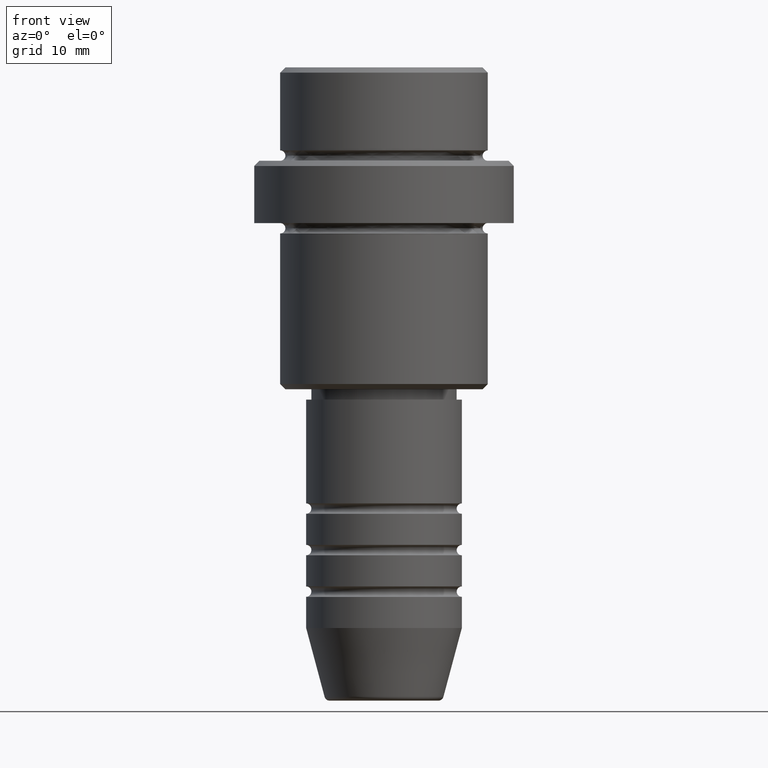
[diagram: clean part render]
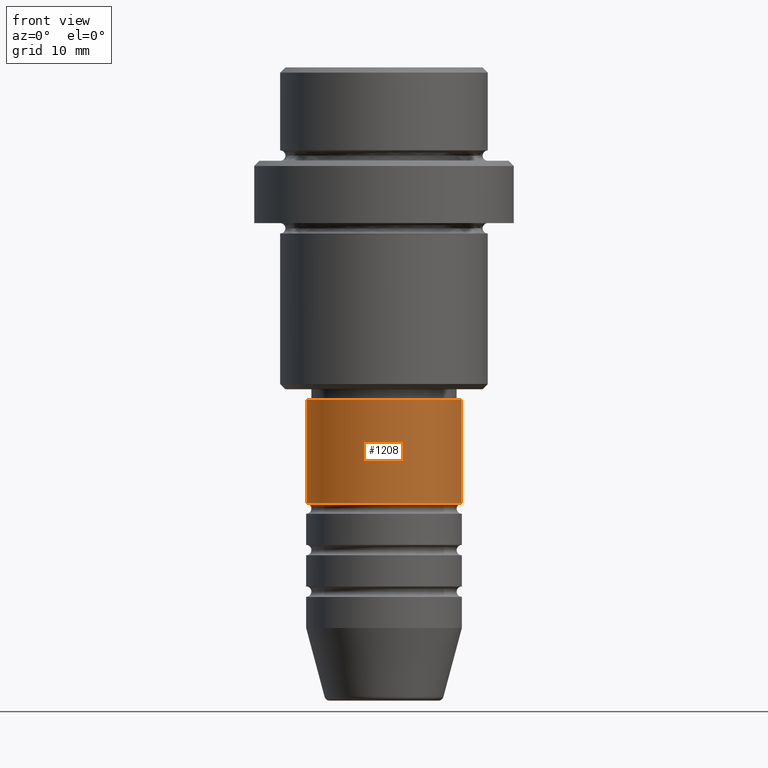
[diagram: same view with one face highlighted and labeled with its STEP entity id]
A machine part, front view. The second image highlights one B-rep face of the part: STEP entity #1208.
In plain terms, the highlighted cylindrical surface (partial cylindrical patch) has radius 7.5 mm, axis along (-0, -0, 1).
Its self-contained STEP definition (entity closure, byte-faithful):
#7 = CARTESIAN_POINT ( 'NONE',  ( 0.000000000000000000, 0.000000000000000000, 0.000000000000000000 ) ) ;
#25 = ORIENTED_EDGE ( 'NONE', *, *, #1352, .T. ) ;
#76 = EDGE_CURVE ( 'NONE', #1186, #1345, #517, .T. ) ;
#116 = AXIS2_PLACEMENT_3D ( 'NONE', #1355, #715, #825 ) ;
#216 = FACE_OUTER_BOUND ( 'NONE', #770, .T. ) ;
#248 = CARTESIAN_POINT ( 'NONE',  ( 7.500000000000000000, 0.000000000000000000, 0.000000000000000000 ) ) ;
#294 = DIRECTION ( 'NONE',  ( -0.000000000000000000, -0.000000000000000000, 1.000000000000000000 ) ) ;
#330 = CARTESIAN_POINT ( 'NONE',  ( 7.500000000000000000, 0.000000000000000000, -41.99999999999988631 ) ) ;
#351 = EDGE_CURVE ( 'NONE', #1345, #1177, #887, .T. ) ;
#394 = AXIS2_PLACEMENT_3D ( 'NONE', #1411, #987, #877 ) ;
#439 = DIRECTION ( 'NONE',  ( 1.000000000000000000, 0.000000000000000000, 0.000000000000000000 ) ) ;
#447 = CARTESIAN_POINT ( 'NONE',  ( -7.500000000000000000, 9.184850993605147944E-16, -41.99999999999988631 ) ) ;
#517 = LINE ( 'NONE', #815, #646 ) ;
#582 = DIRECTION ( 'NONE',  ( -0.000000000000000000, -0.000000000000000000, 1.000000000000000000 ) ) ;
#646 = VECTOR ( 'NONE', #294, 1000.000000000000000 ) ;
#715 = DIRECTION ( 'NONE',  ( -0.000000000000000000, -0.000000000000000000, 1.000000000000000000 ) ) ;
#767 = CYLINDRICAL_SURFACE ( 'NONE', #1167, 7.500000000000000000 ) ;
#770 = EDGE_LOOP ( 'NONE', ( #1271, #1016, #25, #878 ) ) ;
#795 = CARTESIAN_POINT ( 'NONE',  ( -7.500000000000000000, 9.184850993605147944E-16, -32.00000000000000000 ) ) ;
#815 = CARTESIAN_POINT ( 'NONE',  ( -7.500000000000000000, 9.184850993605147944E-16, 0.000000000000000000 ) ) ;
#825 = DIRECTION ( 'NONE',  ( 1.000000000000000000, 0.000000000000000000, 0.000000000000000000 ) ) ;
#877 = DIRECTION ( 'NONE',  ( 1.000000000000000000, 0.000000000000000000, 0.000000000000000000 ) ) ;
#878 = ORIENTED_EDGE ( 'NONE', *, *, #351, .F. ) ;
#887 = CIRCLE ( 'NONE', #394, 7.500000000000000000 ) ;
#987 = DIRECTION ( 'NONE',  ( -0.000000000000000000, -0.000000000000000000, 1.000000000000000000 ) ) ;
#1003 = CIRCLE ( 'NONE', #116, 7.500000000000000000 ) ;
#1016 = ORIENTED_EDGE ( 'NONE', *, *, #1372, .T. ) ;
#1102 = VERTEX_POINT ( 'NONE', #330 ) ;
#1120 = VECTOR ( 'NONE', #582, 1000.000000000000000 ) ;
#1167 = AXIS2_PLACEMENT_3D ( 'NONE', #7, #1415, #439 ) ;
#1177 = VERTEX_POINT ( 'NONE', #1292 ) ;
#1186 = VERTEX_POINT ( 'NONE', #447 ) ;
#1208 = ADVANCED_FACE ( 'NONE', ( #216 ), #767, .T. ) ;
#1231 = LINE ( 'NONE', #248, #1120 ) ;
#1271 = ORIENTED_EDGE ( 'NONE', *, *, #76, .F. ) ;
#1292 = CARTESIAN_POINT ( 'NONE',  ( 7.500000000000000000, 0.000000000000000000, -32.00000000000000000 ) ) ;
#1345 = VERTEX_POINT ( 'NONE', #795 ) ;
#1352 = EDGE_CURVE ( 'NONE', #1102, #1177, #1231, .T. ) ;
#1355 = CARTESIAN_POINT ( 'NONE',  ( 0.000000000000000000, 0.000000000000000000, -41.99999999999988631 ) ) ;
#1372 = EDGE_CURVE ( 'NONE', #1186, #1102, #1003, .T. ) ;
#1411 = CARTESIAN_POINT ( 'NONE',  ( 0.000000000000000000, 0.000000000000000000, -32.00000000000000000 ) ) ;
#1415 = DIRECTION ( 'NONE',  ( -0.000000000000000000, -0.000000000000000000, 1.000000000000000000 ) ) ;